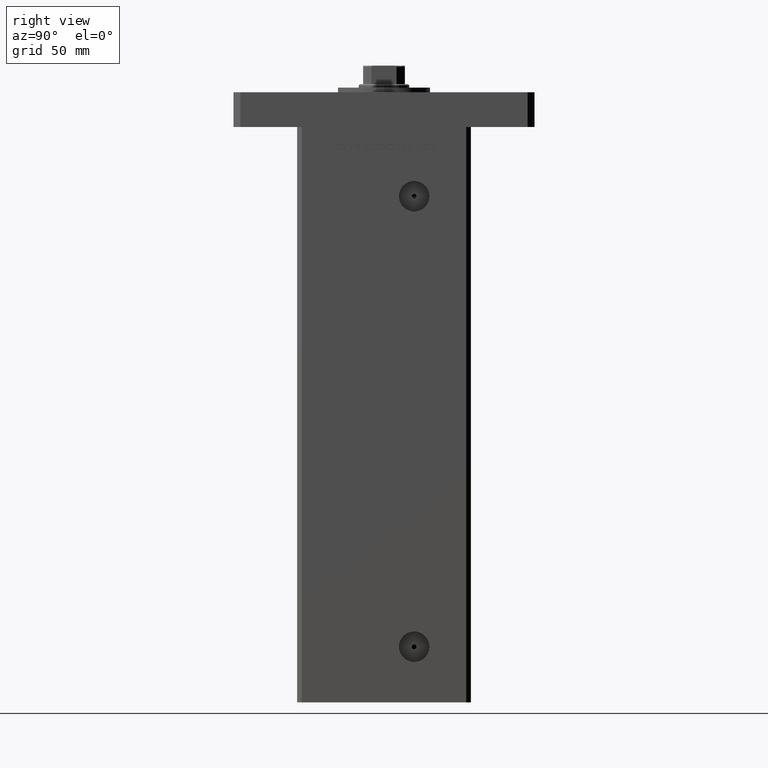
[diagram: clean part render]
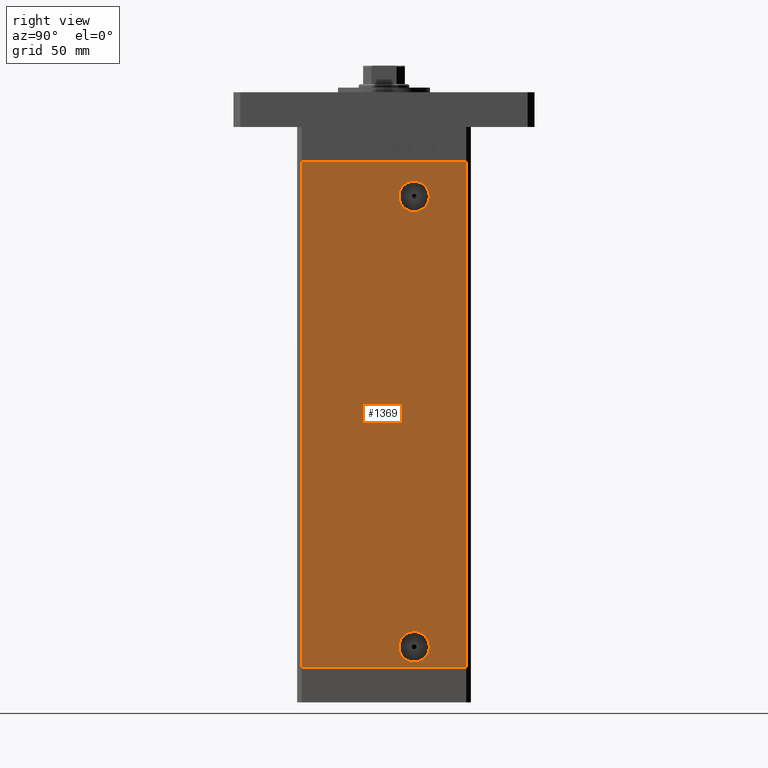
[diagram: same view with one face highlighted and labeled with its STEP entity id]
A machine part, right view. The second image highlights one B-rep face of the part: STEP entity #1369.
In plain terms, the highlighted planar face has unit normal (1, -0, 0).
Its self-contained STEP definition (entity closure, byte-faithful):
#146 = ORIENTED_EDGE ( 'NONE', *, *, #19106, .T. ) ;
#205 = VERTEX_POINT ( 'NONE', #6545 ) ;
#246 = CARTESIAN_POINT ( 'NONE',  ( 42.49999999999998579, -35.50000000000000711, 218.5000000000000000 ) ) ;
#597 = LINE ( 'NONE', #4377, #23382 ) ;
#889 = EDGE_LOOP ( 'NONE', ( #38226, #21896 ) ) ;
#1369 = ADVANCED_FACE ( 'NONE', ( #14149, #22307, #30689 ), #5477, .T. ) ;
#2173 = CARTESIAN_POINT ( 'NONE',  ( 42.49999999999998579, -35.50000000000000711, 0.000000000000000000 ) ) ;
#2559 = CARTESIAN_POINT ( 'NONE',  ( 42.49999999999999289, 13.00000000000000000, 9.000000000000012434 ) ) ;
#2920 = AXIS2_PLACEMENT_3D ( 'NONE', #8716, #5449, #51515 ) ;
#4377 = CARTESIAN_POINT ( 'NONE',  ( 42.50000000000000711, 35.50000000000001421, 0.000000000000000000 ) ) ;
#4894 = VERTEX_POINT ( 'NONE', #47560 ) ;
#4951 = CARTESIAN_POINT ( 'NONE',  ( 42.50000000000000711, 35.50000000000001421, 218.5000000000000000 ) ) ;
#5207 = DIRECTION ( 'NONE',  ( 1.000000000000000000, -2.931927001650941360E-16, 0.000000000000000000 ) ) ;
#5439 = VERTEX_POINT ( 'NONE', #40562 ) ;
#5449 = DIRECTION ( 'NONE',  ( 1.000000000000000000, -2.275047181608927644E-16, 0.000000000000000000 ) ) ;
#5477 = PLANE ( 'NONE',  #40743 ) ;
#6545 = CARTESIAN_POINT ( 'NONE',  ( 42.50000000000000711, 35.50000000000001421, 218.5000000000000000 ) ) ;
#7233 = AXIS2_PLACEMENT_3D ( 'NONE', #11143, #7619, #52866 ) ;
#7619 = DIRECTION ( 'NONE',  ( 1.000000000000000000, -2.275047181608927644E-16, 0.000000000000000000 ) ) ;
#8171 = CARTESIAN_POINT ( 'NONE',  ( 42.50000000000000711, 35.50000000000001421, 218.5000000000000000 ) ) ;
#8172 = DIRECTION ( 'NONE',  ( -2.931927001650941360E-16, -1.000000000000000000, 0.000000000000000000 ) ) ;
#8716 = CARTESIAN_POINT ( 'NONE',  ( 42.49999999999999289, 13.00000000000000000, 203.5000000000000000 ) ) ;
#9083 = EDGE_CURVE ( 'NONE', #15540, #36680, #35797, .T. ) ;
#10843 = EDGE_CURVE ( 'NONE', #4894, #41594, #48789, .T. ) ;
#11143 = CARTESIAN_POINT ( 'NONE',  ( 42.49999999999999289, 13.00000000000000000, 203.5000000000000000 ) ) ;
#11292 = DIRECTION ( 'NONE',  ( -2.931927001650941360E-16, -1.000000000000000000, 0.000000000000000000 ) ) ;
#11534 = VERTEX_POINT ( 'NONE', #25096 ) ;
#11971 = DIRECTION ( 'NONE',  ( -0.000000000000000000, -0.000000000000000000, -1.000000000000000000 ) ) ;
#13207 = VECTOR ( 'NONE', #11292, 1000.000000000000000 ) ;
#13792 = DIRECTION ( 'NONE',  ( -0.000000000000000000, -0.000000000000000000, -1.000000000000000000 ) ) ;
#14149 = FACE_BOUND ( 'NONE', #35449, .T. ) ;
#15540 = VERTEX_POINT ( 'NONE', #17372 ) ;
#16047 = VECTOR ( 'NONE', #11971, 1000.000000000000000 ) ;
#16064 = ORIENTED_EDGE ( 'NONE', *, *, #9083, .F. ) ;
#17372 = CARTESIAN_POINT ( 'NONE',  ( 42.49999999999999289, 19.58000000000001251, 203.5000000000000000 ) ) ;
#18120 = LINE ( 'NONE', #20250, #13207 ) ;
#18494 = DIRECTION ( 'NONE',  ( 2.931927001650941360E-16, 1.000000000000000000, 0.000000000000000000 ) ) ;
#18753 = EDGE_CURVE ( 'NONE', #205, #11534, #20661, .T. ) ;
#19106 = EDGE_CURVE ( 'NONE', #5439, #38750, #29808, .T. ) ;
#19115 = DIRECTION ( 'NONE',  ( 1.000000000000000000, -2.275047181608927644E-16, 0.000000000000000000 ) ) ;
#19272 = CARTESIAN_POINT ( 'NONE',  ( 42.49999999999999289, 13.00000000000000000, 9.000000000000012434 ) ) ;
#20073 = DIRECTION ( 'NONE',  ( 1.000000000000000000, -2.275047181608927644E-16, 0.000000000000000000 ) ) ;
#20250 = CARTESIAN_POINT ( 'NONE',  ( 42.50000000000000711, 35.50000000000001421, 218.5000000000000000 ) ) ;
#20661 = LINE ( 'NONE', #8171, #16047 ) ;
#21267 = VECTOR ( 'NONE', #13792, 1000.000000000000000 ) ;
#21896 = ORIENTED_EDGE ( 'NONE', *, *, #41860, .F. ) ;
#22307 = FACE_BOUND ( 'NONE', #889, .T. ) ;
#23382 = VECTOR ( 'NONE', #8172, 1000.000000000000000 ) ;
#24688 = DIRECTION ( 'NONE',  ( 0.000000000000000000, 1.000000000000000000, 0.000000000000000000 ) ) ;
#25093 = ORIENTED_EDGE ( 'NONE', *, *, #42402, .F. ) ;
#25096 = CARTESIAN_POINT ( 'NONE',  ( 42.50000000000000711, 35.50000000000001421, 0.000000000000000000 ) ) ;
#25465 = AXIS2_PLACEMENT_3D ( 'NONE', #19272, #20073, #24688 ) ;
#28592 = EDGE_CURVE ( 'NONE', #11534, #38750, #597, .T. ) ;
#29752 = ORIENTED_EDGE ( 'NONE', *, *, #34853, .T. ) ;
#29808 = LINE ( 'NONE', #246, #21267 ) ;
#30689 = FACE_OUTER_BOUND ( 'NONE', #39677, .T. ) ;
#34853 = EDGE_CURVE ( 'NONE', #205, #5439, #18120, .T. ) ;
#35449 = EDGE_LOOP ( 'NONE', ( #16064, #25093 ) ) ;
#35797 = CIRCLE ( 'NONE', #7233, 6.580000000000014282 ) ;
#36680 = VERTEX_POINT ( 'NONE', #41335 ) ;
#37091 = ORIENTED_EDGE ( 'NONE', *, *, #28592, .F. ) ;
#38226 = ORIENTED_EDGE ( 'NONE', *, *, #10843, .F. ) ;
#38750 = VERTEX_POINT ( 'NONE', #2173 ) ;
#39677 = EDGE_LOOP ( 'NONE', ( #37091, #39931, #29752, #146 ) ) ;
#39931 = ORIENTED_EDGE ( 'NONE', *, *, #18753, .F. ) ;
#40562 = CARTESIAN_POINT ( 'NONE',  ( 42.49999999999998579, -35.50000000000000711, 218.5000000000000000 ) ) ;
#40743 = AXIS2_PLACEMENT_3D ( 'NONE', #4951, #5207, #18494 ) ;
#41005 = AXIS2_PLACEMENT_3D ( 'NONE', #2559, #19115, #52165 ) ;
#41335 = CARTESIAN_POINT ( 'NONE',  ( 42.49999999999999289, 6.419999999999983942, 203.5000000000000000 ) ) ;
#41594 = VERTEX_POINT ( 'NONE', #51439 ) ;
#41860 = EDGE_CURVE ( 'NONE', #41594, #4894, #48779, .T. ) ;
#42402 = EDGE_CURVE ( 'NONE', #36680, #15540, #42758, .T. ) ;
#42758 = CIRCLE ( 'NONE', #2920, 6.580000000000014282 ) ;
#47560 = CARTESIAN_POINT ( 'NONE',  ( 42.49999999999999289, 19.57999999999999829, 9.000000000000012434 ) ) ;
#48779 = CIRCLE ( 'NONE', #41005, 6.579999999999997407 ) ;
#48789 = CIRCLE ( 'NONE', #25465, 6.579999999999997407 ) ;
#51439 = CARTESIAN_POINT ( 'NONE',  ( 42.49999999999999289, 6.420000000000000817, 9.000000000000012434 ) ) ;
#51515 = DIRECTION ( 'NONE',  ( 0.000000000000000000, 1.000000000000000000, 0.000000000000000000 ) ) ;
#52165 = DIRECTION ( 'NONE',  ( 0.000000000000000000, 1.000000000000000000, 0.000000000000000000 ) ) ;
#52866 = DIRECTION ( 'NONE',  ( 0.000000000000000000, 1.000000000000000000, 0.000000000000000000 ) ) ;